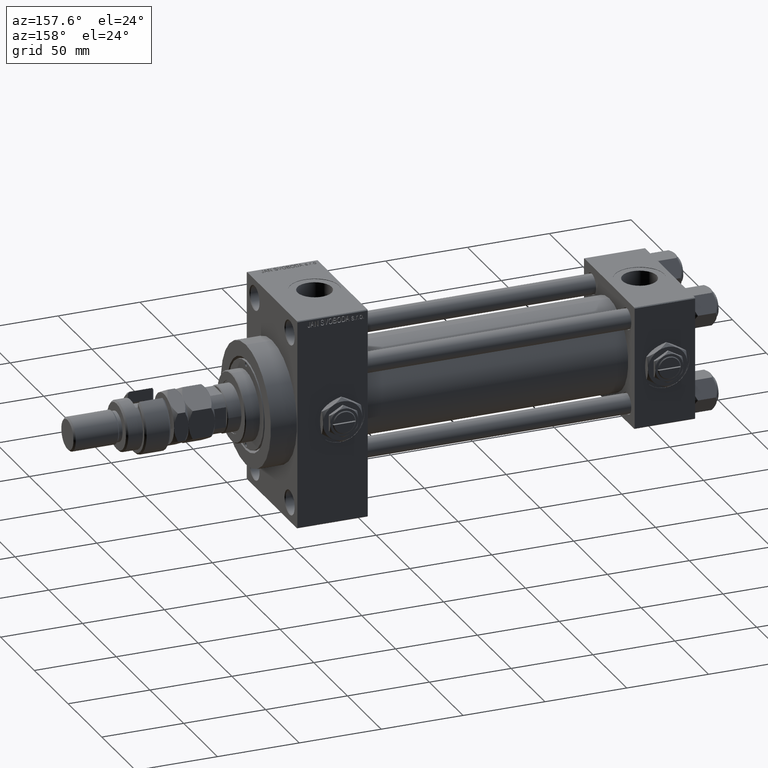
[diagram: clean part render]
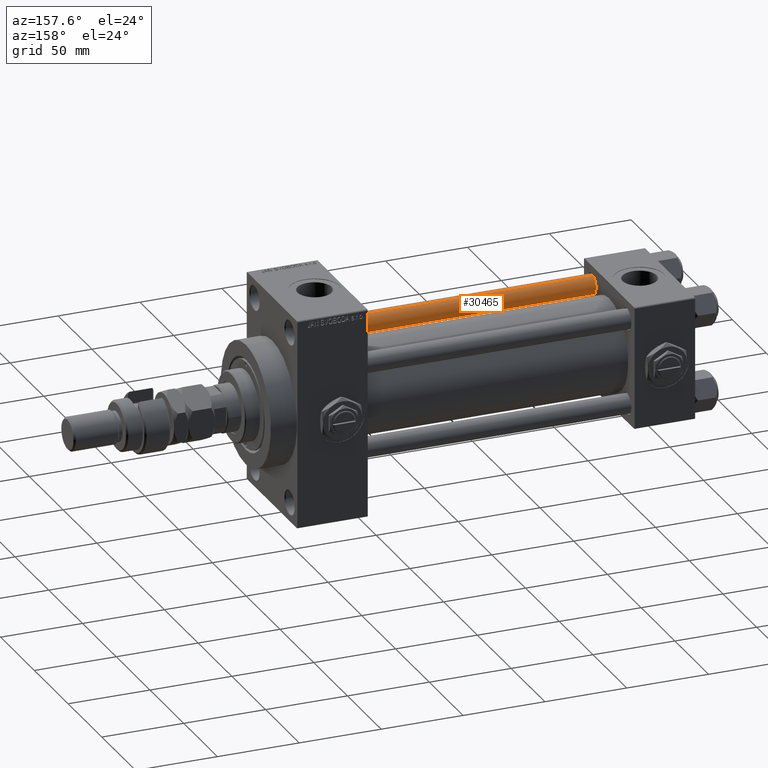
[diagram: same view with one face highlighted and labeled with its STEP entity id]
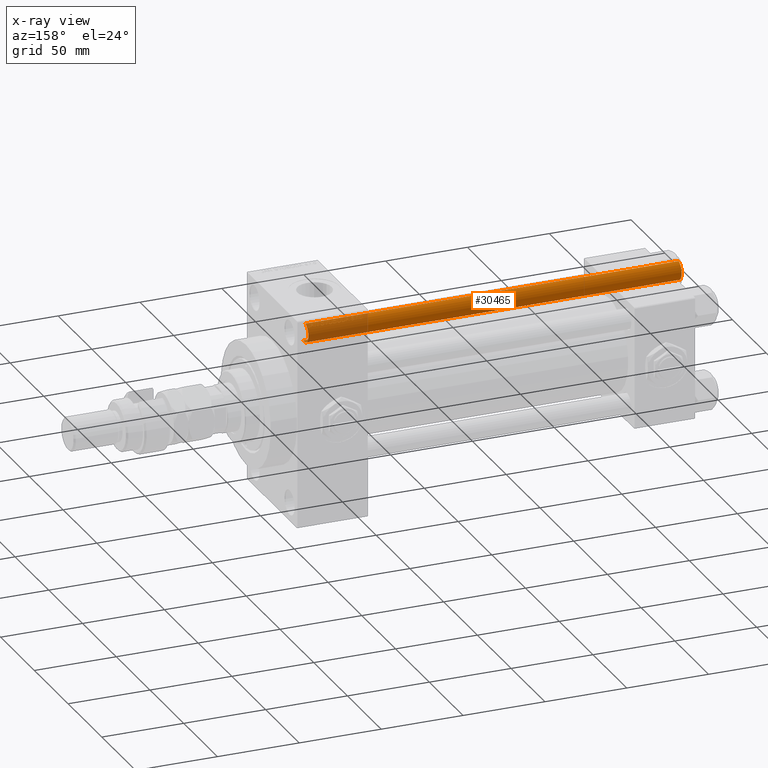
[diagram: x-ray of the same camera — body ghosted, the highlighted face saturated]
A machine part, auxiliary view. The second image highlights one B-rep face of the part: STEP entity #30465.
The next image is the same camera in x-ray: the body ghosted, the highlighted face saturated — about 16% of this face is hidden behind the body in this view.
In plain terms, the highlighted cylindrical surface (edge-blend (fillet) strip) has radius 6 mm, axis along (1, 0, 0).
Its self-contained STEP definition (entity closure, byte-faithful):
#3849 = CARTESIAN_POINT ( 'NONE',  ( -6.000000000000000888, 0.000000000000000000, 229.0000000000000000 ) ) ;
#5356 = ORIENTED_EDGE ( 'NONE', *, *, #40468, .T. ) ;
#8880 = DIRECTION ( 'NONE',  ( -0.000000000000000000, -0.000000000000000000, -1.000000000000000000 ) ) ;
#10347 = LINE ( 'NONE', #51116, #11620 ) ;
#11620 = VECTOR ( 'NONE', #23295, 1000.000000000000000 ) ;
#11776 = DIRECTION ( 'NONE',  ( -0.000000000000000000, -0.000000000000000000, -1.000000000000000000 ) ) ;
#17410 = CIRCLE ( 'NONE', #40287, 6.000000000000000888 ) ;
#17496 = DIRECTION ( 'NONE',  ( 1.000000000000000000, 0.000000000000000000, 0.000000000000000000 ) ) ;
#18008 = DIRECTION ( 'NONE',  ( -0.000000000000000000, -0.000000000000000000, 1.000000000000000000 ) ) ;
#18319 = VECTOR ( 'NONE', #11776, 1000.000000000000000 ) ;
#19229 = CYLINDRICAL_SURFACE ( 'NONE', #30392, 6.000000000000000888 ) ;
#20311 = VERTEX_POINT ( 'NONE', #44689 ) ;
#20514 = AXIS2_PLACEMENT_3D ( 'NONE', #21317, #37483, #33746 ) ;
#21317 = CARTESIAN_POINT ( 'NONE',  ( 0.000000000000000000, 0.000000000000000000, 228.5000000000001137 ) ) ;
#21860 = EDGE_CURVE ( 'NONE', #27401, #38225, #17410, .T. ) ;
#21946 = CARTESIAN_POINT ( 'NONE',  ( -6.000000000000000888, 0.000000000000000000, 0.5000000000001392220 ) ) ;
#23187 = FACE_OUTER_BOUND ( 'NONE', #50474, .T. ) ;
#23295 = DIRECTION ( 'NONE',  ( -0.000000000000000000, -0.000000000000000000, -1.000000000000000000 ) ) ;
#23470 = EDGE_CURVE ( 'NONE', #20311, #27401, #32435, .T. ) ;
#24516 = DIRECTION ( 'NONE',  ( -1.000000000000000000, 0.000000000000000000, 0.000000000000000000 ) ) ;
#25145 = EDGE_CURVE ( 'NONE', #48365, #38225, #10347, .T. ) ;
#25695 = CARTESIAN_POINT ( 'NONE',  ( 0.000000000000000000, 0.000000000000000000, 0.5000000000001392220 ) ) ;
#26403 = ORIENTED_EDGE ( 'NONE', *, *, #21860, .T. ) ;
#27401 = VERTEX_POINT ( 'NONE', #21946 ) ;
#27416 = CARTESIAN_POINT ( 'NONE',  ( 0.000000000000000000, 0.000000000000000000, 229.0000000000000000 ) ) ;
#30206 = CARTESIAN_POINT ( 'NONE',  ( 6.000000000000000888, 7.347880794884119736E-16, 228.5000000000001137 ) ) ;
#30392 = AXIS2_PLACEMENT_3D ( 'NONE', #27416, #8880, #24516 ) ;
#30465 = ADVANCED_FACE ( 'NONE', ( #23187 ), #19229, .T. ) ;
#32435 = LINE ( 'NONE', #3849, #18319 ) ;
#33746 = DIRECTION ( 'NONE',  ( 1.000000000000000000, 0.000000000000000000, 0.000000000000000000 ) ) ;
#37483 = DIRECTION ( 'NONE',  ( 0.000000000000000000, 0.000000000000000000, -1.000000000000000000 ) ) ;
#38225 = VERTEX_POINT ( 'NONE', #45740 ) ;
#40287 = AXIS2_PLACEMENT_3D ( 'NONE', #25695, #18008, #17496 ) ;
#40468 = EDGE_CURVE ( 'NONE', #48365, #20311, #41709, .T. ) ;
#41129 = ORIENTED_EDGE ( 'NONE', *, *, #25145, .F. ) ;
#41709 = CIRCLE ( 'NONE', #20514, 6.000000000000000888 ) ;
#42084 = ORIENTED_EDGE ( 'NONE', *, *, #23470, .T. ) ;
#44689 = CARTESIAN_POINT ( 'NONE',  ( -6.000000000000000888, 0.000000000000000000, 228.5000000000001137 ) ) ;
#45740 = CARTESIAN_POINT ( 'NONE',  ( 6.000000000000000888, 7.347880794884119736E-16, 0.5000000000001392220 ) ) ;
#48365 = VERTEX_POINT ( 'NONE', #30206 ) ;
#50474 = EDGE_LOOP ( 'NONE', ( #41129, #5356, #42084, #26403 ) ) ;
#51116 = CARTESIAN_POINT ( 'NONE',  ( 6.000000000000000888, 7.347880794884119736E-16, 229.0000000000000000 ) ) ;